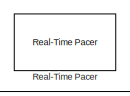
[diagram: root canvas - part 1/4, top center region]
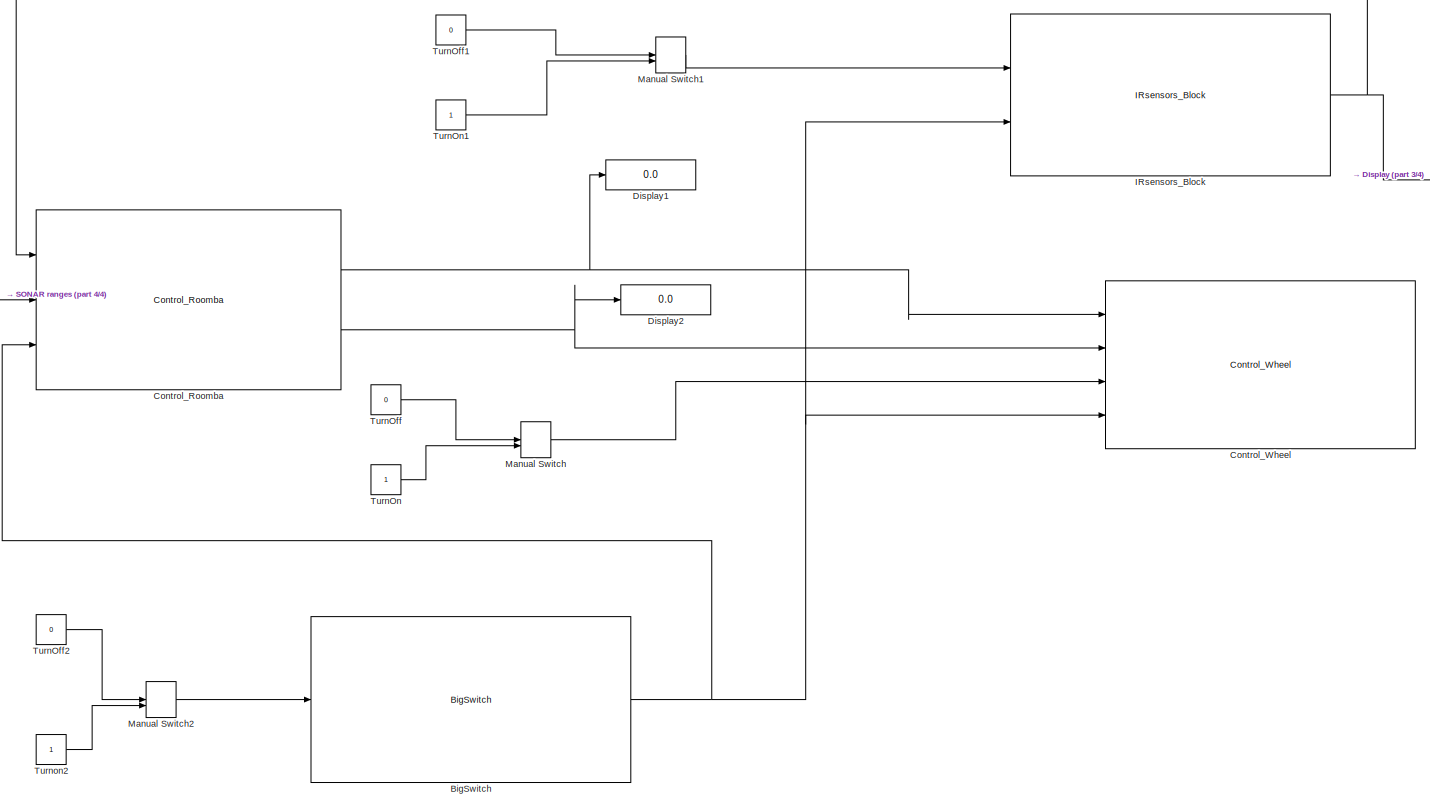
[diagram: root canvas - part 2/4, most of the canvas]
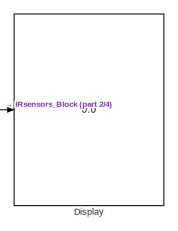
[diagram: root canvas - part 3/4, top right region]
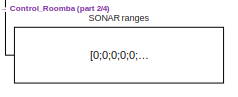
[diagram: root canvas - part 4/4, middle left region]
MODEL slx_a70ac3f2d6f8
KIND model
CONFIG AbsTol = auto
CONFIG EnableMultiTasking = off
CONFIG FixedStep = auto
CONFIG MaxStep = auto
CONFIG MinStep = auto
CONFIG RelTol = 1e-3
CONFIG SampleTimeConstraint = Unconstrained
CONFIG Solver = VariableStepAuto
CONFIG SolverName = VariableStepAuto
CONFIG StartTime = 0.0
CONFIG StopTime = inf
BLOCK [Reference] BigSwitch  REF=Project1_Library/BigSwitch
  Ports = [1, 1]
  SourceBlock = Project1_Library/BigSwitch
BLOCK [Reference] Control_Roomba  REF=Project1_Library/Control_Roomba
  Ports = [3, 2]
  SourceBlock = Project1_Library/Control_Roomba
  SourceType = SubSystem
BLOCK [Reference] Control_Wheel  REF=Project1_Library/Control_Wheel
  Ports = [4]
  SourceBlock = Project1_Library/Control_Wheel
BLOCK [Display] Display
  Decimation = 1
  Ports = [1]
BLOCK [Display] Display1
  Decimation = 1
  Ports = [1]
BLOCK [Display] Display2
  Decimation = 1
  Ports = [1]
BLOCK [Reference] IRsensors_Block  REF=Project1_Library/IRsensors_Block
  Ports = [2, 1]
  SourceBlock = Project1_Library/IRsensors_Block
BLOCK [ManualSwitch] Manual Switch
  CurrentSetting = 0
BLOCK [ManualSwitch] Manual Switch1
  CurrentSetting = 0
BLOCK [ManualSwitch] Manual Switch2
  CurrentSetting = 0
BLOCK [Reference] Real-Time Pacer  REF=realtime_pacer_lib/Real-Time Pacer
  Ports = []
  SourceBlock = realtime_pacer_lib/Real-Time Pacer
  SourceType = RealTime_Pacer
BLOCK [Constant] SONAR ranges
  Value = [0;0;0;0;0;0]
BLOCK [Constant] TurnOff
  Value = 0
BLOCK [Constant] TurnOff1
  Value = 0
BLOCK [Constant] TurnOff2
  Value = 0
BLOCK [Constant] TurnOn
BLOCK [Constant] TurnOn1
BLOCK [Constant] Turnon2
NET BigSwitch:1 -> Control_Roomba:3, Control_Wheel:4, IRsensors_Block:2
NET Control_Roomba:1 -> Control_Wheel:1, Display1:1
NET Control_Roomba:2 -> Control_Wheel:2, Display2:1
NET IRsensors_Block:1 -> Control_Roomba:1, Display:1
LINE Manual Switch1:1 -> IRsensors_Block:1
LINE Manual Switch2:1 -> BigSwitch:1
LINE Manual Switch:1 -> Control_Wheel:3
LINE SONAR ranges:1 -> Control_Roomba:2
LINE TurnOff1:1 -> Manual Switch1:1
LINE TurnOff2:1 -> Manual Switch2:1
LINE TurnOff:1 -> Manual Switch:1
LINE TurnOn1:1 -> Manual Switch1:2
LINE TurnOn:1 -> Manual Switch:2
LINE Turnon2:1 -> Manual Switch2:2
note: NET lines group one-source signal fan-out (src -> all destinations, sorted); 1:1 wires keep LINE
